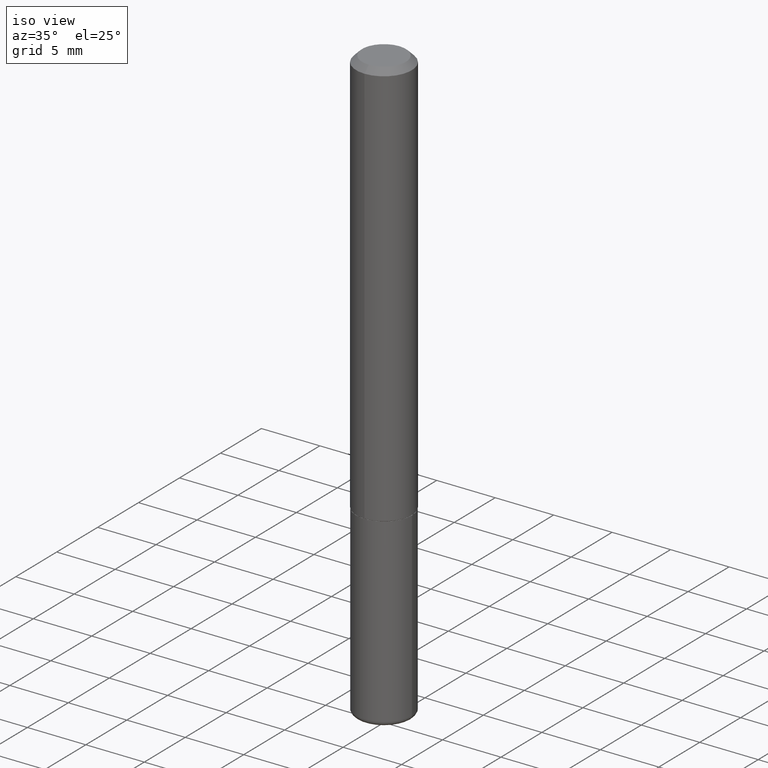
[diagram: clean part render]
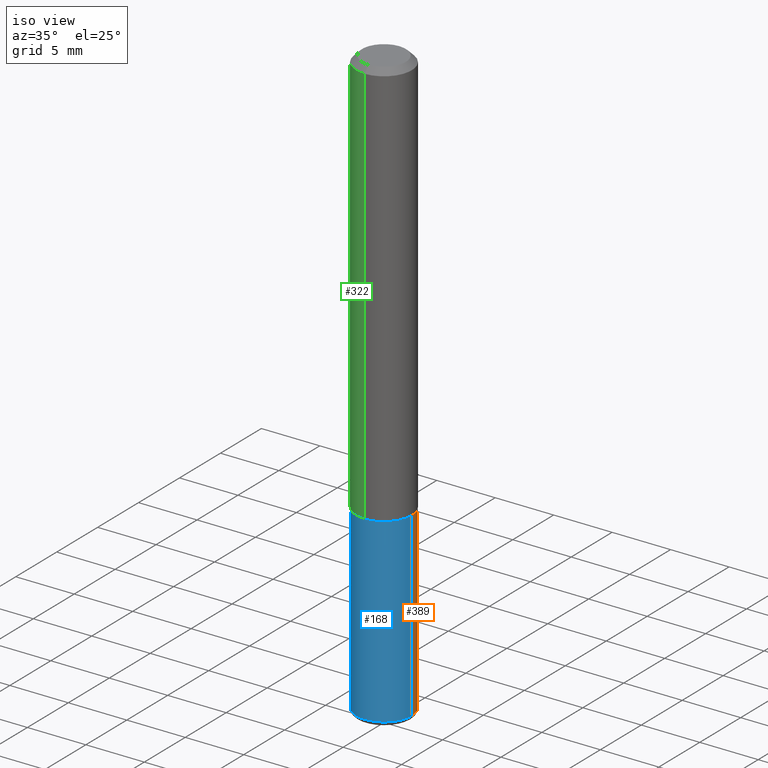
[diagram: same view with three faces highlighted in distinct colors, each labeled with its STEP entity id]
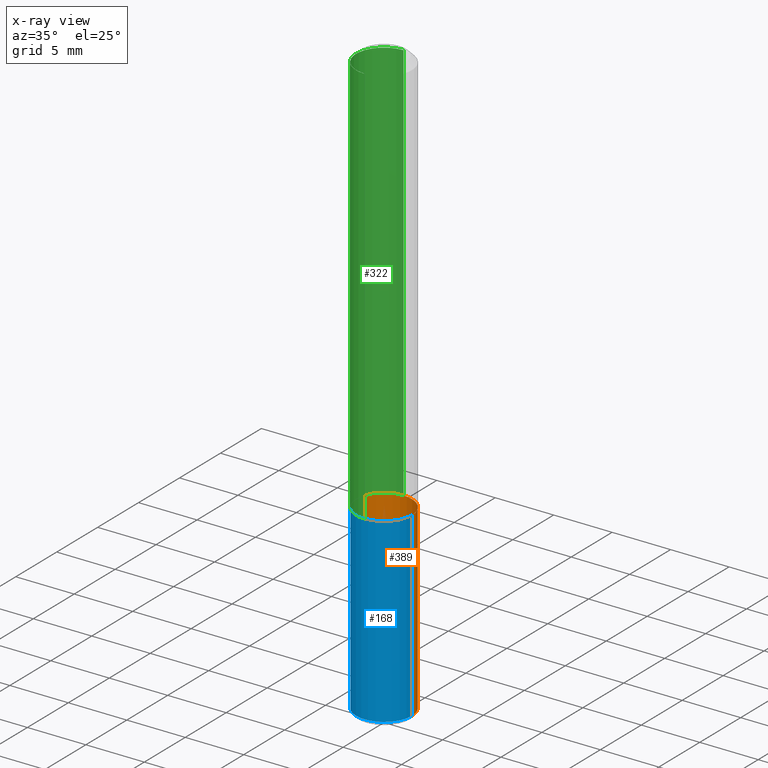
[diagram: x-ray of the same camera — body ghosted, the three highlighted faces saturated]
A machine part, iso view with three faces highlighted in distinct colors.
The next image is the same camera in x-ray (body ghosted, the three faces saturated) — at least one of them is partly hidden behind the body in this view.
Their STEP definitions:

[orange] entity #389 — the highlighted cylindrical surface (edge-blend (fillet) strip) has radius 2.3813 mm, axis along (-0, 0, 1).
#28 = CARTESIAN_POINT ( 'NONE',  ( 0.09374999999999991673, -7.585243208636731985E-15, -1.985000000000000098 ) ) ;
#36 = CYLINDRICAL_SURFACE ( 'NONE', #320, 0.09375000000000001388 ) ;
#37 = EDGE_CURVE ( 'NONE', #343, #120, #296, .T. ) ;
#38 = FACE_OUTER_BOUND ( 'NONE', #111, .T. ) ;
#43 = EDGE_CURVE ( 'NONE', #347, #269, #122, .T. ) ;
#44 = DIRECTION ( 'NONE',  ( -2.445468806185136877E-29, 3.491481338843145188E-15, 1.000000000000000000 ) ) ;
#90 = DIRECTION ( 'NONE',  ( -2.445468806185136877E-29, 3.491481338843145188E-15, 1.000000000000000000 ) ) ;
#98 = ORIENTED_EDGE ( 'NONE', *, *, #37, .T. ) ;
#108 = DIRECTION ( 'NONE',  ( -2.445468806185136597E-29, 3.491481338843145583E-15, 1.000000000000000000 ) ) ;
#111 = EDGE_LOOP ( 'NONE', ( #98, #317, #414, #221 ) ) ;
#113 = LINE ( 'NONE', #117, #360 ) ;
#117 = CARTESIAN_POINT ( 'NONE',  ( 0.09375000000000001388, -6.546527510330875041E-16, 4.571415727308690506E-30 ) ) ;
#120 = VERTEX_POINT ( 'NONE', #224 ) ;
#122 = CIRCLE ( 'NONE', #264, 0.09375000000000001388 ) ;
#134 = LINE ( 'NONE', #211, #271 ) ;
#171 = CARTESIAN_POINT ( 'NONE',  ( 0.000000000000000000, 0.000000000000000000, 0.000000000000000000 ) ) ;
#211 = CARTESIAN_POINT ( 'NONE',  ( -0.09375000000000001388, 6.661338147750940229E-16, -4.611501647113973995E-30 ) ) ;
#221 = ORIENTED_EDGE ( 'NONE', *, *, #290, .F. ) ;
#224 = CARTESIAN_POINT ( 'NONE',  ( -0.09374999999999991673, -6.264456642828550556E-15, -1.985000000000000098 ) ) ;
#234 = DIRECTION ( 'NONE',  ( -2.445468806185136597E-29, 3.491481338843145583E-15, 1.000000000000000000 ) ) ;
#237 = EDGE_CURVE ( 'NONE', #120, #269, #134, .T. ) ;
#243 = AXIS2_PLACEMENT_3D ( 'NONE', #341, #401, #248 ) ;
#248 = DIRECTION ( 'NONE',  ( 1.000000000000000000, -6.982962677686261189E-15, 0.000000000000000000 ) ) ;
#252 = DIRECTION ( 'NONE',  ( 1.000000000000000000, -6.982962677686261189E-15, 0.000000000000000000 ) ) ;
#263 = CARTESIAN_POINT ( 'NONE',  ( 3.362519608504562260E-29, -4.800786840909324930E-15, -1.375000000000000000 ) ) ;
#264 = AXIS2_PLACEMENT_3D ( 'NONE', #263, #108, #252 ) ;
#269 = VERTEX_POINT ( 'NONE', #315 ) ;
#271 = VECTOR ( 'NONE', #90, 39.37007874015748143 ) ;
#290 = EDGE_CURVE ( 'NONE', #343, #347, #113, .T. ) ;
#296 = CIRCLE ( 'NONE', #243, 0.09375000000000001388 ) ;
#315 = CARTESIAN_POINT ( 'NONE',  ( -0.09375000000000001388, -5.199554834481389992E-15, -1.375000000000000000 ) ) ;
#317 = ORIENTED_EDGE ( 'NONE', *, *, #237, .T. ) ;
#320 = AXIS2_PLACEMENT_3D ( 'NONE', #171, #234, #363 ) ;
#341 = CARTESIAN_POINT ( 'NONE',  ( 4.854255580277496436E-29, -6.930590457603643692E-15, -1.985000000000000098 ) ) ;
#343 = VERTEX_POINT ( 'NONE', #28 ) ;
#347 = VERTEX_POINT ( 'NONE', #380 ) ;
#360 = VECTOR ( 'NONE', #44, 39.37007874015748143 ) ;
#363 = DIRECTION ( 'NONE',  ( 1.000000000000000000, -6.982962677686265922E-15, 4.876176775795935793E-29 ) ) ;
#380 = CARTESIAN_POINT ( 'NONE',  ( 0.09375000000000001388, -5.455439591942412434E-15, -1.375000000000000000 ) ) ;
#389 = ADVANCED_FACE ( 'NONE', ( #38 ), #36, .T. ) ;
#401 = DIRECTION ( 'NONE',  ( -2.445468806185136597E-29, 3.491481338843145583E-15, 1.000000000000000000 ) ) ;
#414 = ORIENTED_EDGE ( 'NONE', *, *, #43, .F. ) ;

[blue] entity #168 — the highlighted cylindrical surface (edge-blend (fillet) strip) has radius 2.3813 mm, axis along (-0, 0, 1).
#14 = CIRCLE ( 'NONE', #31, 0.09375000000000001388 ) ;
#28 = CARTESIAN_POINT ( 'NONE',  ( 0.09374999999999991673, -7.585243208636731985E-15, -1.985000000000000098 ) ) ;
#31 = AXIS2_PLACEMENT_3D ( 'NONE', #288, #379, #285 ) ;
#44 = DIRECTION ( 'NONE',  ( -2.445468806185136877E-29, 3.491481338843145188E-15, 1.000000000000000000 ) ) ;
#68 = FACE_OUTER_BOUND ( 'NONE', #103, .T. ) ;
#84 = ORIENTED_EDGE ( 'NONE', *, *, #237, .F. ) ;
#90 = DIRECTION ( 'NONE',  ( -2.445468806185136877E-29, 3.491481338843145188E-15, 1.000000000000000000 ) ) ;
#97 = CARTESIAN_POINT ( 'NONE',  ( 4.854255580277496436E-29, -6.930590457603643692E-15, -1.985000000000000098 ) ) ;
#100 = CYLINDRICAL_SURFACE ( 'NONE', #123, 0.09375000000000001388 ) ;
#103 = EDGE_LOOP ( 'NONE', ( #84, #199, #114, #375 ) ) ;
#109 = EDGE_CURVE ( 'NONE', #120, #343, #217, .T. ) ;
#113 = LINE ( 'NONE', #117, #360 ) ;
#114 = ORIENTED_EDGE ( 'NONE', *, *, #290, .T. ) ;
#117 = CARTESIAN_POINT ( 'NONE',  ( 0.09375000000000001388, -6.546527510330875041E-16, 4.571415727308690506E-30 ) ) ;
#120 = VERTEX_POINT ( 'NONE', #224 ) ;
#123 = AXIS2_PLACEMENT_3D ( 'NONE', #206, #198, #324 ) ;
#134 = LINE ( 'NONE', #211, #271 ) ;
#157 = EDGE_CURVE ( 'NONE', #269, #347, #14, .T. ) ;
#168 = ADVANCED_FACE ( 'NONE', ( #68 ), #100, .T. ) ;
#198 = DIRECTION ( 'NONE',  ( -2.445468806185136597E-29, 3.491481338843145583E-15, 1.000000000000000000 ) ) ;
#199 = ORIENTED_EDGE ( 'NONE', *, *, #109, .T. ) ;
#206 = CARTESIAN_POINT ( 'NONE',  ( 0.000000000000000000, 0.000000000000000000, 0.000000000000000000 ) ) ;
#211 = CARTESIAN_POINT ( 'NONE',  ( -0.09375000000000001388, 6.661338147750940229E-16, -4.611501647113973995E-30 ) ) ;
#217 = CIRCLE ( 'NONE', #397, 0.09375000000000001388 ) ;
#224 = CARTESIAN_POINT ( 'NONE',  ( -0.09374999999999991673, -6.264456642828550556E-15, -1.985000000000000098 ) ) ;
#231 = DIRECTION ( 'NONE',  ( -2.445468806185136597E-29, 3.491481338843145583E-15, 1.000000000000000000 ) ) ;
#237 = EDGE_CURVE ( 'NONE', #120, #269, #134, .T. ) ;
#269 = VERTEX_POINT ( 'NONE', #315 ) ;
#271 = VECTOR ( 'NONE', #90, 39.37007874015748143 ) ;
#283 = DIRECTION ( 'NONE',  ( 1.000000000000000000, -6.982962677686261189E-15, 0.000000000000000000 ) ) ;
#285 = DIRECTION ( 'NONE',  ( 1.000000000000000000, -6.982962677686261189E-15, 0.000000000000000000 ) ) ;
#288 = CARTESIAN_POINT ( 'NONE',  ( 3.362519608504562260E-29, -4.800786840909324930E-15, -1.375000000000000000 ) ) ;
#290 = EDGE_CURVE ( 'NONE', #343, #347, #113, .T. ) ;
#315 = CARTESIAN_POINT ( 'NONE',  ( -0.09375000000000001388, -5.199554834481389992E-15, -1.375000000000000000 ) ) ;
#324 = DIRECTION ( 'NONE',  ( 1.000000000000000000, -6.982962677686265922E-15, 4.876176775795935793E-29 ) ) ;
#343 = VERTEX_POINT ( 'NONE', #28 ) ;
#347 = VERTEX_POINT ( 'NONE', #380 ) ;
#360 = VECTOR ( 'NONE', #44, 39.37007874015748143 ) ;
#375 = ORIENTED_EDGE ( 'NONE', *, *, #157, .F. ) ;
#379 = DIRECTION ( 'NONE',  ( -2.445468806185136597E-29, 3.491481338843145583E-15, 1.000000000000000000 ) ) ;
#380 = CARTESIAN_POINT ( 'NONE',  ( 0.09375000000000001388, -5.455439591942412434E-15, -1.375000000000000000 ) ) ;
#397 = AXIS2_PLACEMENT_3D ( 'NONE', #97, #231, #283 ) ;

[green] entity #322 — the highlighted cylindrical surface (edge-blend (fillet) strip) has radius 2.3813 mm, axis along (-0, 0, 1).
#4 = CARTESIAN_POINT ( 'NONE',  ( -6.546527510330881944E-16, -0.09375000000000011102, 3.272963696799707431E-16 ) ) ;
#19 = CARTESIAN_POINT ( 'NONE',  ( 0.000000000000000000, 0.000000000000000000, 0.000000000000000000 ) ) ;
#25 = DIRECTION ( 'NONE',  ( -6.982962677686265922E-15, -1.000000000000000000, 3.505871591869136910E-15 ) ) ;
#32 = DIRECTION ( 'NONE',  ( -2.445692304464510391E-29, 3.491161276586350254E-15, 1.000000000000000000 ) ) ;
#33 = VERTEX_POINT ( 'NONE', #91 ) ;
#41 = EDGE_CURVE ( 'NONE', #132, #124, #387, .T. ) ;
#59 = DIRECTION ( 'NONE',  ( -2.445692304464510391E-29, 3.491161276586350254E-15, 1.000000000000000000 ) ) ;
#60 = CARTESIAN_POINT ( 'NONE',  ( 4.891384608929025126E-31, -6.982322553172705093E-17, -0.02000000000000001776 ) ) ;
#62 = CARTESIAN_POINT ( 'NONE',  ( 6.661338147750946145E-16, 0.09375000000000011102, -3.272963696799707431E-16 ) ) ;
#64 = ORIENTED_EDGE ( 'NONE', *, *, #213, .T. ) ;
#91 = CARTESIAN_POINT ( 'NONE',  ( -6.546527510330552594E-16, -0.09375000000000499600, -1.373999999999999666 ) ) ;
#124 = VERTEX_POINT ( 'NONE', #289 ) ;
#127 = LINE ( 'NONE', #62, #340 ) ;
#132 = VERTEX_POINT ( 'NONE', #230 ) ;
#158 = DIRECTION ( 'NONE',  ( -6.982962677686265922E-15, -1.000000000000000000, 3.491161276586350648E-15 ) ) ;
#189 = CYLINDRICAL_SURFACE ( 'NONE', #333, 0.09375000000000011102 ) ;
#190 = DIRECTION ( 'NONE',  ( -6.982962677686266711E-15, -1.000000000000000000, 2.913971193241874850E-15 ) ) ;
#213 = EDGE_CURVE ( 'NONE', #33, #124, #272, .T. ) ;
#230 = CARTESIAN_POINT ( 'NONE',  ( 6.546527510330880958E-16, 0.09374999999999995837, -0.02000000000000034736 ) ) ;
#245 = EDGE_CURVE ( 'NONE', #314, #33, #417, .T. ) ;
#247 = ORIENTED_EDGE ( 'NONE', *, *, #41, .F. ) ;
#270 = AXIS2_PLACEMENT_3D ( 'NONE', #60, #32, #25 ) ;
#272 = LINE ( 'NONE', #4, #291 ) ;
#289 = CARTESIAN_POINT ( 'NONE',  ( -6.431716872910806895E-16, -0.09375000000000009714, -0.01999999999999968817 ) ) ;
#291 = VECTOR ( 'NONE', #390, 39.37007874015748143 ) ;
#313 = DIRECTION ( 'NONE',  ( -2.445692304464510391E-29, 3.491161276586350254E-15, 1.000000000000000000 ) ) ;
#314 = VERTEX_POINT ( 'NONE', #349 ) ;
#322 = ADVANCED_FACE ( 'NONE', ( #345 ), #189, .T. ) ;
#333 = AXIS2_PLACEMENT_3D ( 'NONE', #19, #59, #158 ) ;
#339 = EDGE_CURVE ( 'NONE', #314, #132, #127, .T. ) ;
#340 = VECTOR ( 'NONE', #313, 39.37007874015748143 ) ;
#345 = FACE_OUTER_BOUND ( 'NONE', #371, .T. ) ;
#349 = CARTESIAN_POINT ( 'NONE',  ( 6.661338147751117722E-16, 0.09374999999999537870, -1.374000000000000110 ) ) ;
#366 = ORIENTED_EDGE ( 'NONE', *, *, #339, .F. ) ;
#371 = EDGE_LOOP ( 'NONE', ( #366, #384, #64, #247 ) ) ;
#384 = ORIENTED_EDGE ( 'NONE', *, *, #245, .T. ) ;
#387 = CIRCLE ( 'NONE', #270, 0.09375000000000002776 ) ;
#390 = DIRECTION ( 'NONE',  ( -2.445692304464510391E-29, 3.491161276586350254E-15, 1.000000000000000000 ) ) ;
#393 = AXIS2_PLACEMENT_3D ( 'NONE', #404, #405, #190 ) ;
#404 = CARTESIAN_POINT ( 'NONE',  ( 3.360381226334237203E-29, -4.796855594029644698E-15, -1.373999999999999888 ) ) ;
#405 = DIRECTION ( 'NONE',  ( -2.445692304464510391E-29, 3.491161276586350254E-15, 1.000000000000000000 ) ) ;
#417 = CIRCLE ( 'NONE', #393, 0.09375000000000019429 ) ;